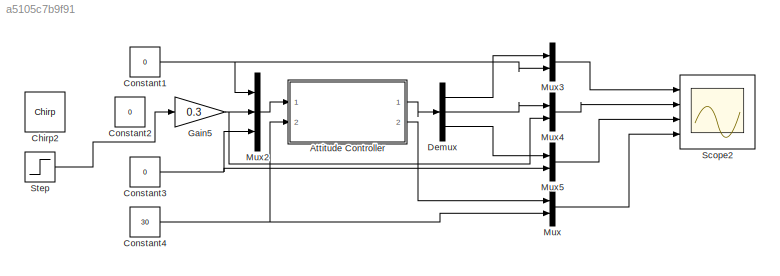
MODEL slx_a5105c7b9f91
KIND model
CONFIG AbsTol = auto
CONFIG EnableMultiTasking = off
CONFIG FixedStep = auto
CONFIG MaxStep = auto
CONFIG MinStep = auto
CONFIG RelTol = 1e-3
CONFIG SampleTimeConstraint = Unconstrained
CONFIG SolverName = VariableStepAuto
CONFIG StartTime = 0.0
CONFIG StopTime = 10.0
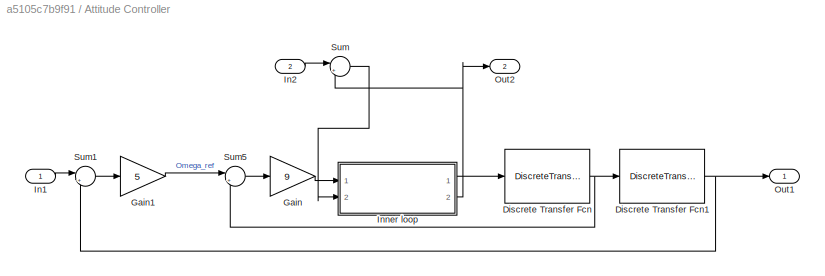
BLOCK [SubSystem] Attitude Controller
  Ports = [2, 2]
  RequestExecContextInheritance = off
BLOCK [DiscreteTransferFcn] Attitude Controller/Discrete Transfer Fcn
  Denominator = [1 -1]
  InputPortMap = u0
  NameLocation = top
  Numerator = [Ts 0]
  Ports = [1, 1]
BLOCK [DiscreteTransferFcn] Attitude Controller/Discrete Transfer Fcn1
  Denominator = [1 -1]
  InputPortMap = u0
  NameLocation = top
  Numerator = [Ts 0]
  Ports = [1, 1]
BLOCK [Gain] Attitude Controller/Gain
  Gain = 9
BLOCK [Gain] Attitude Controller/Gain1
  Gain = 5
BLOCK [Inport] Attitude Controller/In1
BLOCK [Inport] Attitude Controller/In2
  Port = 2
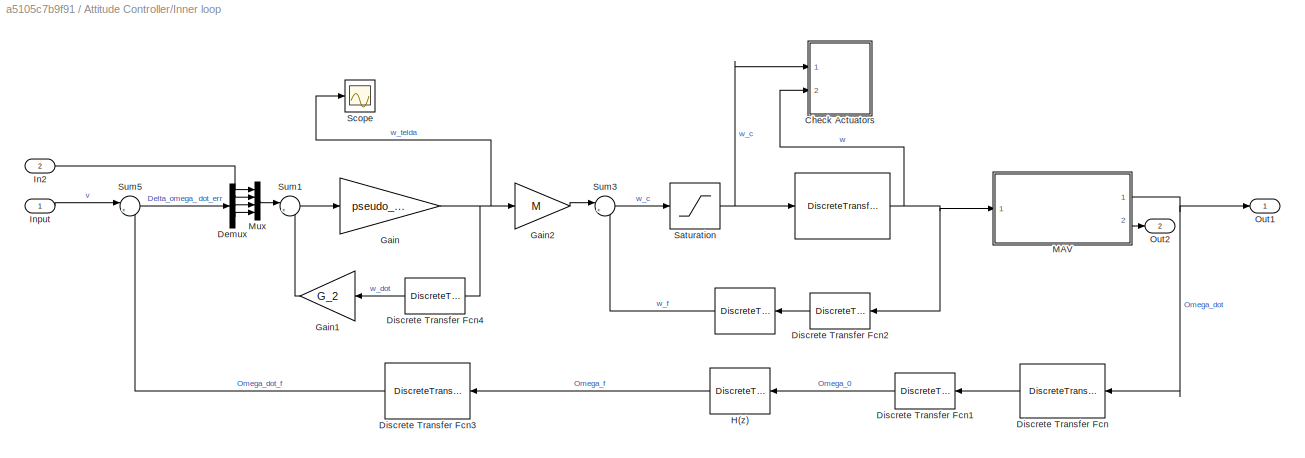
BLOCK [SubSystem] Attitude Controller/Inner loop
  Ports = [2, 2]
  RequestExecContextInheritance = off
BLOCK [DiscreteTransferFcn] Attitude Controller/Inner loop/ 
  DenCoefDataTypeStr = int16
  Denominator = H_z_den
  InputPortMap = u0
  Numerator = H_z_num
  Ports = [1, 1]
BLOCK [DiscreteTransferFcn] Attitude Controller/Inner loop/  
  DenCoefDataTypeStr = int16
  Denominator = mot_den
  InputPortMap = u0
  Numerator = mot_num
  Ports = [1, 1]
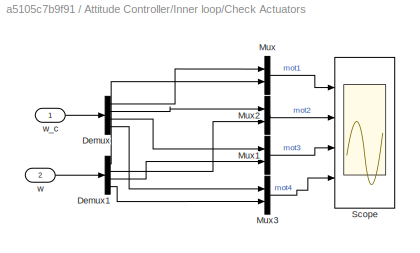
BLOCK [SubSystem] Attitude Controller/Inner loop/Check Actuators
  Ports = [2]
  RequestExecContextInheritance = off
BLOCK [Demux] Attitude Controller/Inner loop/Check Actuators/Demux
  Ports = [1, 4]
BLOCK [Demux] Attitude Controller/Inner loop/Check Actuators/Demux1
  Ports = [1, 4]
BLOCK [Mux] Attitude Controller/Inner loop/Check Actuators/Mux
  DisplayOption = bar
  Inputs = 2
  Ports = [2, 1]
BLOCK [Mux] Attitude Controller/Inner loop/Check Actuators/Mux1
  DisplayOption = bar
  Inputs = 2
  Ports = [2, 1]
BLOCK [Mux] Attitude Controller/Inner loop/Check Actuators/Mux2
  DisplayOption = bar
  Inputs = 2
  Ports = [2, 1]
BLOCK [Mux] Attitude Controller/Inner loop/Check Actuators/Mux3
  DisplayOption = bar
  Inputs = 2
  Ports = [2, 1]
BLOCK [Scope] Attitude Controller/Inner loop/Check Actuators/Scope
  Floating = off
  NumInputPorts = 4
  Ports = [4]
  ScopeSpecificationString = Simulink.scopes.TimeScopeBlockCfg('CurrentConfiguration', extmgr.ConfigurationSet(extmgr.Configuration('Core','General UI',true),extmgr.Configuration('Core','Source UI',true),extmgr.Configuration('Sources','WiredSimulink',true,'DataLoggingVariableName','ScopeData3'),extmgr.Configuration('Visuals','Time Domain',true,'SerializedDisplays',{struct('MinYLimReal','-22.31408','MaxYLimReal','705.51555','Y...<+3558ch>
BLOCK [Inport] Attitude Controller/Inner loop/Check Actuators/w
  Port = 2
BLOCK [Inport] Attitude Controller/Inner loop/Check Actuators/w_c
BLOCK [Demux] Attitude Controller/Inner loop/Demux
  Outputs = 3
  Ports = [1, 3]
BLOCK [DiscreteTransferFcn] Attitude Controller/Inner loop/Discrete Transfer Fcn
  Denominator = [1 -1]
  InputPortMap = u0
  NameLocation = top
  Numerator = [Ts 0]
  Ports = [1, 1]
BLOCK [DiscreteTransferFcn] Attitude Controller/Inner loop/Discrete Transfer Fcn1
  Denominator = [1 0]
  InputPortMap = u0
  NameLocation = top
  Ports = [1, 1]
BLOCK [DiscreteTransferFcn] Attitude Controller/Inner loop/Discrete Transfer Fcn2
  Denominator = [1 0]
  InputPortMap = u0
  NameLocation = top
  Ports = [1, 1]
BLOCK [DiscreteTransferFcn] Attitude Controller/Inner loop/Discrete Transfer Fcn3
  Denominator = [Ts 0]
  InputPortMap = u0
  Numerator = [1 -1]
  Ports = [1, 1]
BLOCK [DiscreteTransferFcn] Attitude Controller/Inner loop/Discrete Transfer Fcn4
  Denominator = [1 0]
  InputPortMap = u0
  NameLocation = top
  Ports = [1, 1]
BLOCK [Gain] Attitude Controller/Inner loop/Gain
  Gain = pseudo_g12
  Multiplication = Matrix(K*u)
BLOCK [Gain] Attitude Controller/Inner loop/Gain1
  Gain = G_2
  Multiplication = Matrix(K*u)
  NameLocation = top
BLOCK [Gain] Attitude Controller/Inner loop/Gain2
  Gain = M
BLOCK [DiscreteTransferFcn] Attitude Controller/Inner loop/H(z)
  DenCoefDataTypeStr = int16
  Denominator = H_z_den
  InputPortMap = u0
  Numerator = H_z_num
  Ports = [1, 1]
BLOCK [Inport] Attitude Controller/Inner loop/In2
  Port = 2
BLOCK [Inport] Attitude Controller/Inner loop/Input
  PortDimensions = 3
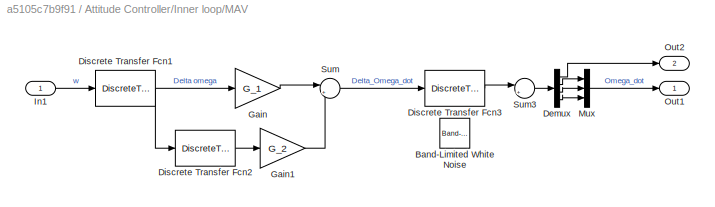
BLOCK [SubSystem] Attitude Controller/Inner loop/MAV
  Ports = [1, 2]
  RequestExecContextInheritance = off
BLOCK [Reference] Attitude Controller/Inner loop/MAV/Band-Limited White Noise  REF=simulink/Sources/Band-Limited
White Noise
  Ports = [0, 1]
  SourceBlock = simulink/Sources/Band-Limited\nWhite Noise
  SourceProductBaseCode = SL
  SourceType = Band-Limited White Noise.
BLOCK [Demux] Attitude Controller/Inner loop/MAV/Demux
  Ports = [1, 4]
BLOCK [DiscreteTransferFcn] Attitude Controller/Inner loop/MAV/Discrete Transfer Fcn1
  Denominator = [1 0]
  InputPortMap = u0
  Numerator = [1 -1]
  Ports = [1, 1]
BLOCK [DiscreteTransferFcn] Attitude Controller/Inner loop/MAV/Discrete Transfer Fcn2
  Denominator = [1 0]
  InputPortMap = u0
  Numerator = [1 -1]
  Ports = [1, 1]
BLOCK [DiscreteTransferFcn] Attitude Controller/Inner loop/MAV/Discrete Transfer Fcn3
  Denominator = [1 -1]
  InputPortMap = u0
  Numerator = [1 0]
  Ports = [1, 1]
BLOCK [Gain] Attitude Controller/Inner loop/MAV/Gain
  Gain = G_1
  Multiplication = Matrix(K*u)
BLOCK [Gain] Attitude Controller/Inner loop/MAV/Gain1
  Gain = G_2
  Multiplication = Matrix(K*u)
BLOCK [Inport] Attitude Controller/Inner loop/MAV/In1
  PortDimensions = 4
BLOCK [Mux] Attitude Controller/Inner loop/MAV/Mux
  DisplayOption = bar
  Inputs = 3
  Ports = [3, 1]
BLOCK [Outport] Attitude Controller/Inner loop/MAV/Out1
  PortDimensions = 3
BLOCK [Outport] Attitude Controller/Inner loop/MAV/Out2
  Port = 2
BLOCK [Sum] Attitude Controller/Inner loop/MAV/Sum
  Inputs = |++
  Ports = [2, 1]
BLOCK [Sum] Attitude Controller/Inner loop/MAV/Sum3
  Inputs = |++
  Ports = [2, 1]
BLOCK [Mux] Attitude Controller/Inner loop/Mux
  DisplayOption = bar
  Ports = [4, 1]
BLOCK [Outport] Attitude Controller/Inner loop/Out1
  PortDimensions = 3
BLOCK [Outport] Attitude Controller/Inner loop/Out2
  Port = 2
BLOCK [Saturate] Attitude Controller/Inner loop/Saturation
  LowerLimit = 0
  UpperLimit = 150*Hz2rads
BLOCK [Scope] Attitude Controller/Inner loop/Scope
  Floating = off
  NumInputPorts = 1
  Ports = [1]
  ScopeSpecificationString = Simulink.scopes.TimeScopeBlockCfg('CurrentConfiguration', extmgr.ConfigurationSet(extmgr.Configuration('Core','General UI',true),extmgr.Configuration('Core','Source UI',true),extmgr.Configuration('Sources','WiredSimulink',true),extmgr.Configuration('Visuals','Time Domain',true,'SerializedDisplays',{struct('MinYLimReal','-75.38814','MaxYLimReal','340.11744','YLabelReal','','MinYLimMag','0.00000','M...<+1405ch>
BLOCK [Sum] Attitude Controller/Inner loop/Sum1
  Inputs = |++
  Ports = [2, 1]
BLOCK [Sum] Attitude Controller/Inner loop/Sum3
  Inputs = |++
  Ports = [2, 1]
BLOCK [Sum] Attitude Controller/Inner loop/Sum5
  Inputs = |+-
  Ports = [2, 1]
BLOCK [Outport] Attitude Controller/Out1
BLOCK [Outport] Attitude Controller/Out2
  Port = 2
BLOCK [Sum] Attitude Controller/Sum
  Inputs = |+-
  Ports = [2, 1]
BLOCK [Sum] Attitude Controller/Sum1
  Inputs = |+-
  Ports = [2, 1]
BLOCK [Sum] Attitude Controller/Sum5
  Inputs = |+-
  Ports = [2, 1]
BLOCK [Reference] Chirp2  REF=dspsrcs4/Chirp
  Ports = [0, 1]
  SourceBlock = dspsrcs4/Chirp
  SourceProductBaseCode = DS
  SourceType = Chirp
BLOCK [Constant] Constant1
  Value = 0
BLOCK [Constant] Constant2
  Value = 0
BLOCK [Constant] Constant3
  Value = 0
BLOCK [Constant] Constant4
  Value = 30
BLOCK [Demux] Demux
  Outputs = 3
  Ports = [1, 3]
BLOCK [Gain] Gain5
  Gain = 0.3
BLOCK [Mux] Mux
  DisplayOption = bar
  Inputs = 2
  Ports = [2, 1]
BLOCK [Mux] Mux2
  DisplayOption = bar
  Inputs = 3
  Ports = [3, 1]
BLOCK [Mux] Mux3
  DisplayOption = bar
  Inputs = 2
  Ports = [2, 1]
BLOCK [Mux] Mux4
  DisplayOption = bar
  Inputs = 2
  Ports = [2, 1]
BLOCK [Mux] Mux5
  DisplayOption = bar
  Inputs = 2
  Ports = [2, 1]
BLOCK [Scope] Scope2
  Floating = off
  NumInputPorts = 4
  Ports = [4]
  ScopeSpecificationString = Simulink.scopes.TimeScopeBlockCfg('CurrentConfiguration', extmgr.ConfigurationSet(extmgr.Configuration('Core','General UI',true),extmgr.Configuration('Core','Source UI',true),extmgr.Configuration('Sources','WiredSimulink',true,'DataLoggingVariableName','ScopeData1'),extmgr.Configuration('Visuals','Time Domain',true,'SerializedDisplays',{struct('MinYLimReal','-0.000000000000014','MaxYLimReal','0.00...<+3554ch>
BLOCK [Step] Step
  SampleTime = 0
NET Attitude Controller/Discrete Transfer Fcn1:1 -> Attitude Controller/Out1:1, Attitude Controller/Sum1:2
NET Attitude Controller/Discrete Transfer Fcn:1 -> Attitude Controller/Discrete Transfer Fcn1:1, Attitude Controller/Sum5:2
LINE Attitude Controller/Gain1:1 -> Attitude Controller/Sum5:1
LINE Attitude Controller/Gain:1 -> Attitude Controller/Inner loop:1
LINE Attitude Controller/In1:1 -> Attitude Controller/Sum1:1
LINE Attitude Controller/In2:1 -> Attitude Controller/Sum:1
NET Attitude Controller/Inner loop/  :1 -> Attitude Controller/Inner loop/Check Actuators:2, Attitude Controller/Inner loop/Discrete Transfer Fcn2:1, Attitude Controller/Inner loop/MAV:1
LINE Attitude Controller/Inner loop/ :1 -> Attitude Controller/Inner loop/Sum3:2
LINE Attitude Controller/Inner loop/Check Actuators/Demux1:1 -> Attitude Controller/Inner loop/Check Actuators/Mux:2
LINE Attitude Controller/Inner loop/Check Actuators/Demux1:2 -> Attitude Controller/Inner loop/Check Actuators/Mux2:2
LINE Attitude Controller/Inner loop/Check Actuators/Demux1:3 -> Attitude Controller/Inner loop/Check Actuators/Mux1:2
LINE Attitude Controller/Inner loop/Check Actuators/Demux1:4 -> Attitude Controller/Inner loop/Check Actuators/Mux3:2
LINE Attitude Controller/Inner loop/Check Actuators/Demux:1 -> Attitude Controller/Inner loop/Check Actuators/Mux:1
LINE Attitude Controller/Inner loop/Check Actuators/Demux:2 -> Attitude Controller/Inner loop/Check Actuators/Mux2:1
LINE Attitude Controller/Inner loop/Check Actuators/Demux:3 -> Attitude Controller/Inner loop/Check Actuators/Mux1:1
LINE Attitude Controller/Inner loop/Check Actuators/Demux:4 -> Attitude Controller/Inner loop/Check Actuators/Mux3:1
LINE Attitude Controller/Inner loop/Check Actuators/Mux1:1 -> Attitude Controller/Inner loop/Check Actuators/Scope:3
LINE Attitude Controller/Inner loop/Check Actuators/Mux2:1 -> Attitude Controller/Inner loop/Check Actuators/Scope:2
LINE Attitude Controller/Inner loop/Check Actuators/Mux3:1 -> Attitude Controller/Inner loop/Check Actuators/Scope:4
LINE Attitude Controller/Inner loop/Check Actuators/Mux:1 -> Attitude Controller/Inner loop/Check Actuators/Scope:1
LINE Attitude Controller/Inner loop/Check Actuators/w:1 -> Attitude Controller/Inner loop/Check Actuators/Demux1:1
LINE Attitude Controller/Inner loop/Check Actuators/w_c:1 -> Attitude Controller/Inner loop/Check Actuators/Demux:1
LINE Attitude Controller/Inner loop/Demux:1 -> Attitude Controller/Inner loop/Mux:2
LINE Attitude Controller/Inner loop/Demux:2 -> Attitude Controller/Inner loop/Mux:3
LINE Attitude Controller/Inner loop/Demux:3 -> Attitude Controller/Inner loop/Mux:4
LINE Attitude Controller/Inner loop/Discrete Transfer Fcn1:1 -> Attitude Controller/Inner loop/H(z):1
LINE Attitude Controller/Inner loop/Discrete Transfer Fcn2:1 -> Attitude Controller/Inner loop/ :1
LINE Attitude Controller/Inner loop/Discrete Transfer Fcn3:1 -> Attitude Controller/Inner loop/Sum5:2
LINE Attitude Controller/Inner loop/Discrete Transfer Fcn4:1 -> Attitude Controller/Inner loop/Gain1:1
LINE Attitude Controller/Inner loop/Discrete Transfer Fcn:1 -> Attitude Controller/Inner loop/Discrete Transfer Fcn1:1
LINE Attitude Controller/Inner loop/Gain1:1 -> Attitude Controller/Inner loop/Sum1:2
LINE Attitude Controller/Inner loop/Gain2:1 -> Attitude Controller/Inner loop/Sum3:1
NET Attitude Controller/Inner loop/Gain:1 -> Attitude Controller/Inner loop/Discrete Transfer Fcn4:1, Attitude Controller/Inner loop/Gain2:1, Attitude Controller/Inner loop/Scope:1
LINE Attitude Controller/Inner loop/H(z):1 -> Attitude Controller/Inner loop/Discrete Transfer Fcn3:1
LINE Attitude Controller/Inner loop/In2:1 -> Attitude Controller/Inner loop/Mux:1
LINE Attitude Controller/Inner loop/Input:1 -> Attitude Controller/Inner loop/Sum5:1
LINE Attitude Controller/Inner loop/MAV/Demux:1 -> Attitude Controller/Inner loop/MAV/Out2:1
LINE Attitude Controller/Inner loop/MAV/Demux:2 -> Attitude Controller/Inner loop/MAV/Mux:1
LINE Attitude Controller/Inner loop/MAV/Demux:3 -> Attitude Controller/Inner loop/MAV/Mux:2
LINE Attitude Controller/Inner loop/MAV/Demux:4 -> Attitude Controller/Inner loop/MAV/Mux:3
NET Attitude Controller/Inner loop/MAV/Discrete Transfer Fcn1:1 -> Attitude Controller/Inner loop/MAV/Discrete Transfer Fcn2:1, Attitude Controller/Inner loop/MAV/Gain:1
LINE Attitude Controller/Inner loop/MAV/Discrete Transfer Fcn2:1 -> Attitude Controller/Inner loop/MAV/Gain1:1
LINE Attitude Controller/Inner loop/MAV/Discrete Transfer Fcn3:1 -> Attitude Controller/Inner loop/MAV/Sum3:1
LINE Attitude Controller/Inner loop/MAV/Gain1:1 -> Attitude Controller/Inner loop/MAV/Sum:2
LINE Attitude Controller/Inner loop/MAV/Gain:1 -> Attitude Controller/Inner loop/MAV/Sum:1
LINE Attitude Controller/Inner loop/MAV/In1:1 -> Attitude Controller/Inner loop/MAV/Discrete Transfer Fcn1:1
LINE Attitude Controller/Inner loop/MAV/Mux:1 -> Attitude Controller/Inner loop/MAV/Out1:1
LINE Attitude Controller/Inner loop/MAV/Sum3:1 -> Attitude Controller/Inner loop/MAV/Demux:1
LINE Attitude Controller/Inner loop/MAV/Sum:1 -> Attitude Controller/Inner loop/MAV/Discrete Transfer Fcn3:1
NET Attitude Controller/Inner loop/MAV:1 -> Attitude Controller/Inner loop/Discrete Transfer Fcn:1, Attitude Controller/Inner loop/Out1:1
LINE Attitude Controller/Inner loop/MAV:2 -> Attitude Controller/Inner loop/Out2:1
LINE Attitude Controller/Inner loop/Mux:1 -> Attitude Controller/Inner loop/Sum1:1
NET Attitude Controller/Inner loop/Saturation:1 -> Attitude Controller/Inner loop/  :1, Attitude Controller/Inner loop/Check Actuators:1
LINE Attitude Controller/Inner loop/Sum1:1 -> Attitude Controller/Inner loop/Gain:1
LINE Attitude Controller/Inner loop/Sum3:1 -> Attitude Controller/Inner loop/Saturation:1
LINE Attitude Controller/Inner loop/Sum5:1 -> Attitude Controller/Inner loop/Demux:1
LINE Attitude Controller/Inner loop:1 -> Attitude Controller/Discrete Transfer Fcn:1
NET Attitude Controller/Inner loop:2 -> Attitude Controller/Out2:1, Attitude Controller/Sum:2
LINE Attitude Controller/Sum1:1 -> Attitude Controller/Gain1:1
LINE Attitude Controller/Sum5:1 -> Attitude Controller/Gain:1
LINE Attitude Controller/Sum:1 -> Attitude Controller/Inner loop:2
LINE Attitude Controller:1 -> Demux:1
LINE Attitude Controller:2 -> Mux:1
NET Constant1:1 -> Mux2:1, Mux3:2
NET Constant3:1 -> Mux2:3, Mux5:2
NET Constant4:1 -> Attitude Controller:2, Mux:2
LINE Demux:1 -> Mux3:1
LINE Demux:2 -> Mux4:1
LINE Demux:3 -> Mux5:1
NET Gain5:1 -> Mux2:2, Mux4:2
LINE Mux2:1 -> Attitude Controller:1
LINE Mux3:1 -> Scope2:1
LINE Mux4:1 -> Scope2:2
LINE Mux5:1 -> Scope2:3
LINE Mux:1 -> Scope2:4
LINE Step:1 -> Gain5:1
note: NET lines group one-source signal fan-out (src -> all destinations, sorted); 1:1 wires keep LINE
